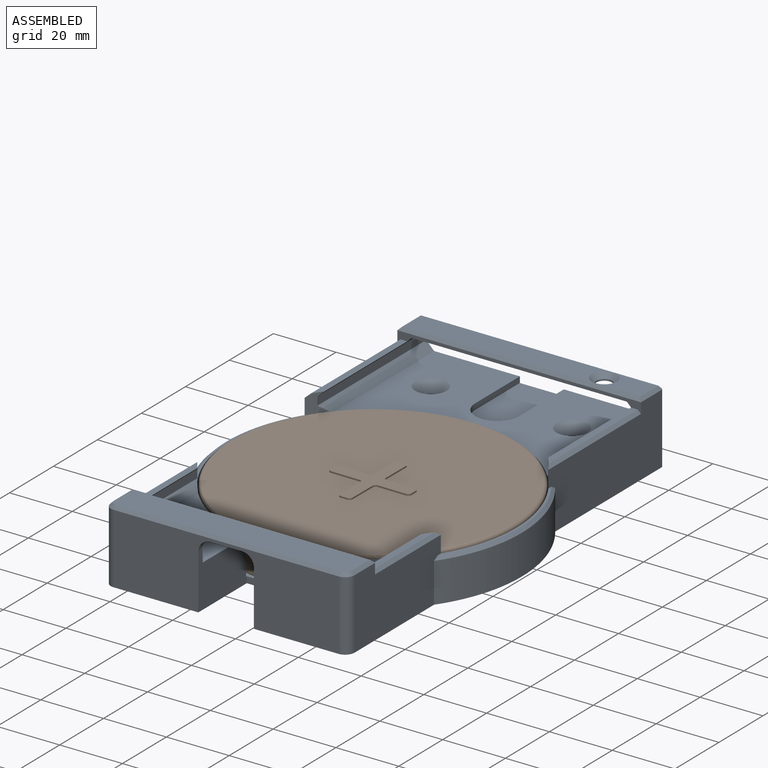
[diagram: assembled view]
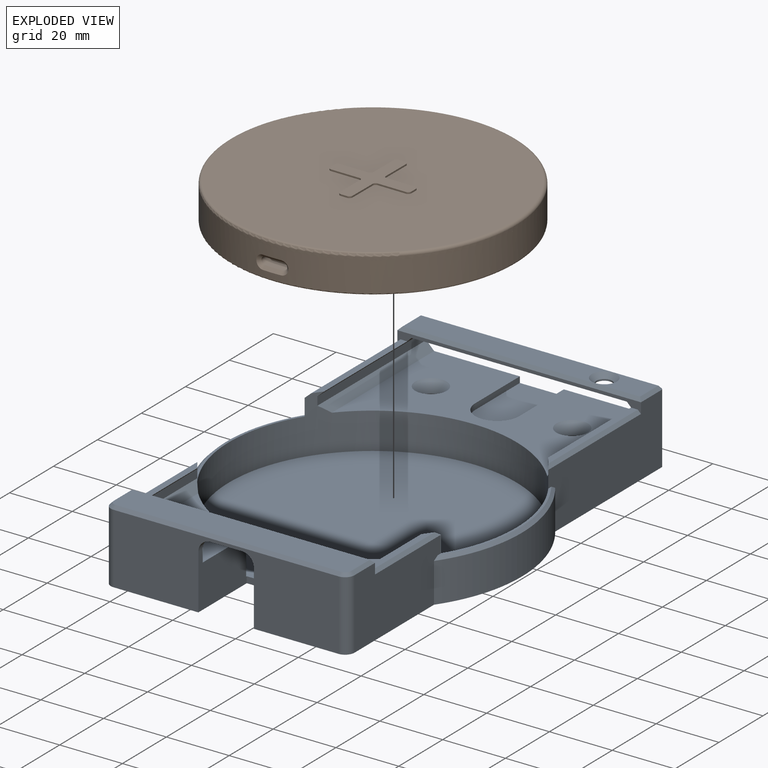
[diagram: exploded view]
GUIDED TOUR — FREECAD ASSEMBLY "NokiaSiroccoWallMount"

This assembly has 2 components, labeled P0..P1 below (a component is one placed body or linked part; the same part can appear more than once), held together by 1 modeled joint. A joint is a constraint between two components; its type names the relative motion it leaves free:
  REVOLUTE — leaves rotation about the listed axis free (a hinge).
Axis/direction vectors are unit vectors and 'through' points are millimeter coordinates, both in the assembly's world frame.

MATES
  1. REVOLUTE [Revolute] "Joint": P0 <-> P1, axis (0.000, 0.000, 1.000) through (0.00, -6.00, -11.60) mm

ASSEMBLY ORDER
  1. P0 — the base component [order verified]
  2. P1 [order verified]
Order-tag legend:
  [order verified] — this step's position reverses a verified removal order: the component was checked to insert without passing through the ones already placed.

Of the 2 components, 1 carries a construction recipe — the FreeCAD feature program (sketches with constraints, then the solid features that consume them) that regenerates the part from scratch, quoted from this document or from the linked companion document it references; the rest are supplied as boundary geometry only. The tour below walks the components in assembly order: each is shown spotlighted twice — in the assembled view, then in the exploded view, where a leader line traces a displaced component back to its assembled socket (components that stay in place when exploded have no leader line; saturated green if recipe-attached, orange if geometry-only; every other component desaturated gray) — followed by its recipe or geometry summary and the mates that hold it.
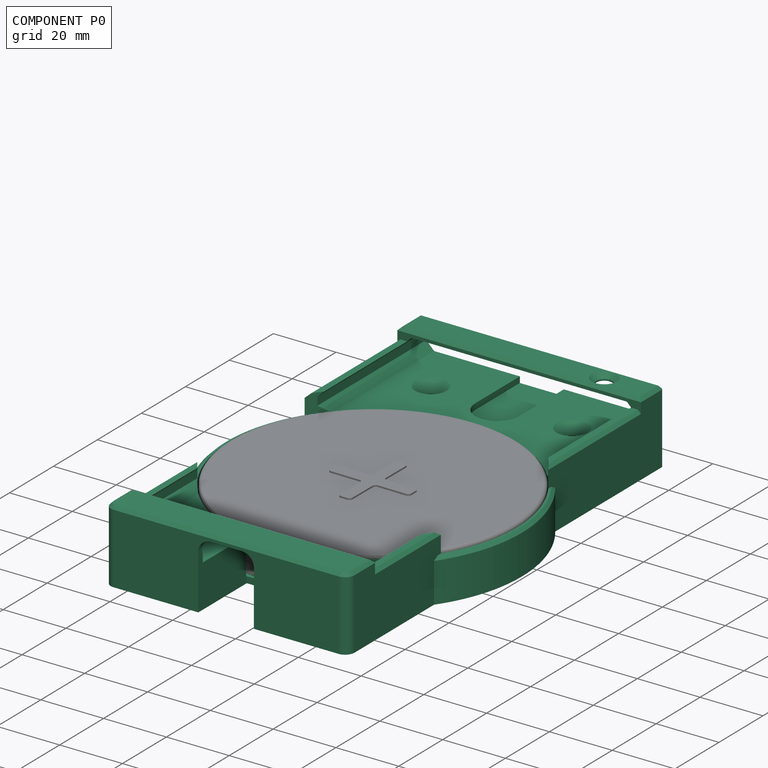
[diagram: component P0 — assembled]
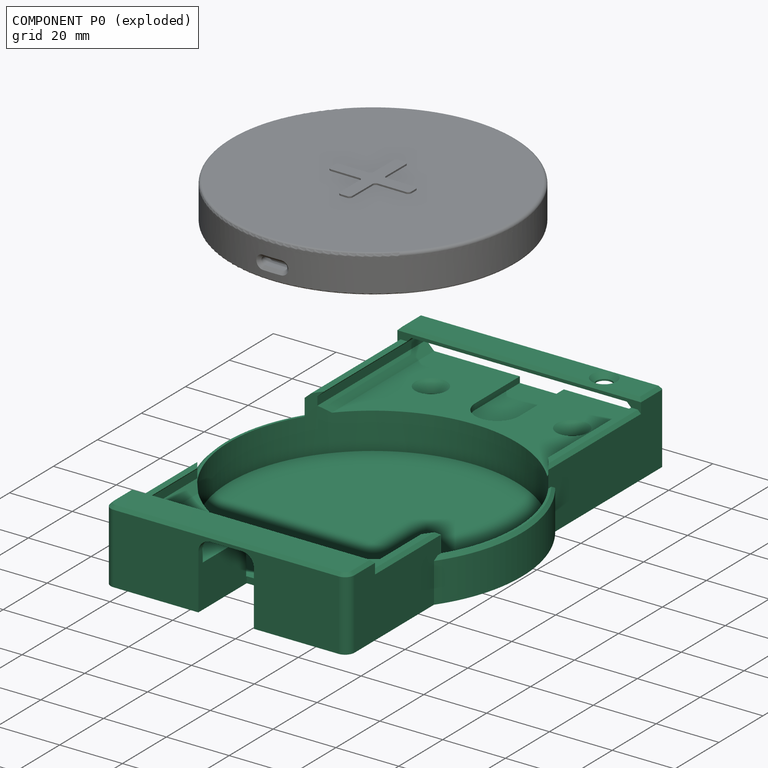
[diagram: component P0 — exploded]
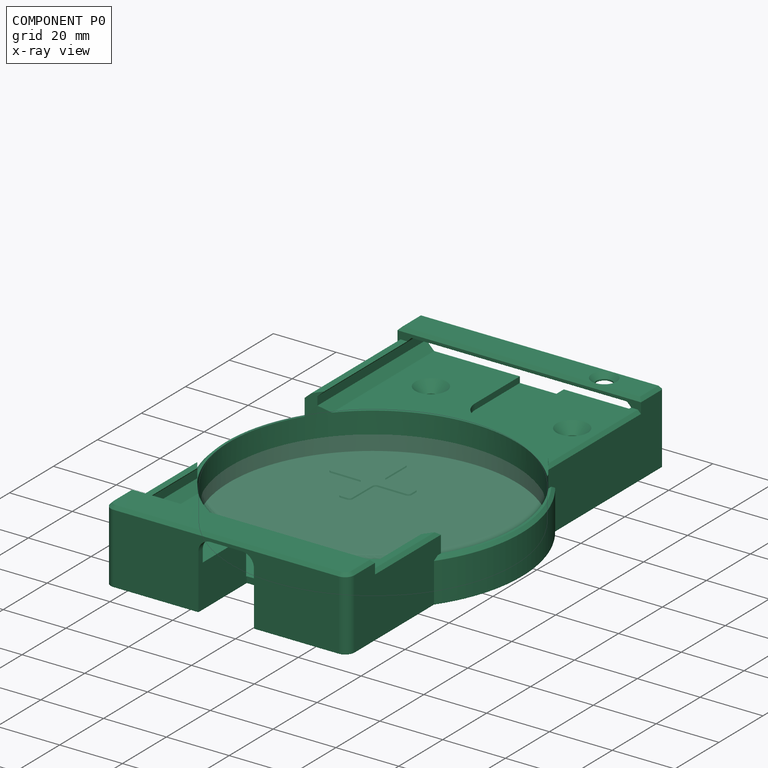
[diagram: component P0 — x-ray view]
COMPONENT P0 — recipe-attached ("Body001", modeled in this document).
Held by: REVOLUTE mate "Joint" to P1.
Construction recipe (the document's own serialized feature program — sketch geometry with constraints, then the solid features built on it; lengths are millimeters unless a unit is written):

FEATURE [Sketcher::SketchObject] Sketch
  ArcFitTolerance = 1e-06
  AttachmentSupport = -> [XZ_Plane]
  FullyConstrained = true
  MakeInternals = false
  MapMode = 5
  Placement = pos=(0,0,0) rot=(1,0,0;1.5708rad)
  expr: Constraints[10] = <<config>>.thickness
  expr: Constraints[11] = <<config>>.thickness
  expr: Constraints[12] = <<phone>>.thickness
  expr: Constraints[22] = <<config>>.thickness
  expr: Constraints[9] = <<phone>>.width / 2 + <<config>>.clearance
  sketch-geometry (8):
    g0: LineSegment StartX=0 StartY=0 StartZ=0 EndX=-36.8 EndY=0 EndZ=0
    g1: LineSegment StartX=-36.8 StartY=0 StartZ=0 EndX=-36.8 EndY=7.7 EndZ=0
    g2: LineSegment StartX=0 StartY=9.7 StartZ=0 EndX=-38.8 EndY=9.7 EndZ=0
    g3: LineSegment StartX=-38.8 StartY=9.7 StartZ=0 EndX=-38.8 EndY=-2 EndZ=0
    g4: LineSegment StartX=-38.8 StartY=-2 StartZ=0 EndX=0 EndY=-2 EndZ=0
    g5: LineSegment StartX=0 StartY=0 StartZ=0 EndX=0 EndY=-2 EndZ=0
    g6: LineSegment StartX=-36.8 StartY=7.7 StartZ=0 EndX=0 EndY=7.7 EndZ=0
    g7: LineSegment StartX=0 StartY=7.7 StartZ=0 EndX=0 EndY=9.7 EndZ=0
  constraints (23):
    c: Coincident(g-1,g0)
    c: PointOnObject(g0,g-1)
    c: Coincident(g0,g1)
    c: Vertical(g1)
    c: Horizontal(g2)
    c: Coincident(g2,g3)
    c: Vertical(g3)
    c: Coincident(g3,g4)
    c: Horizontal(g4)
    c: DistanceX(g0,g0) = 36.8
    c: DistanceY(g4,g0) = 2
    c: DistanceX(g3,g0) = 2
    c: DistanceY(g1,g1) = 7.7
    c: PointOnObject(g4,g-2)
    c: Coincident(g5,g0)
    c: Coincident(g5,g4)
    c: Coincident(g1,g6)
    c: PointOnObject(g6,g-2)
    c: Horizontal(g6)
    c: Coincident(g6,g7)
    c: PointOnObject(g7,g-2)
    c: Coincident(g2,g7)
    c: DistanceY(g6,g2) = 2
FEATURE [PartDesign::Pad] Pad
  Direction = (0,-1,2e-16)
  Length = 141.6
  Length2 = 10
  Midplane = true
  Placement = pos=(0,0,0) rot=(1,0,0;1.5708rad)
  Profile = -> Sketch
  ReferenceAxis = -> Sketch [N_Axis]
  Refine = true
  Suppressed = false
  Type = 0
  expr: Length = <<phone>>.height + 2 * <<config>>.clearance
FEATURE [PartDesign::Plane] DatumPlane
  AttachmentOffset = pos=(0,0,70.8) rot=(0,0,1;0rad)
  AttachmentSupport = -> [XZ_Plane]
  Length = 108.98
  MapMode = 5
  Placement = pos=(0,-70.8,1.57e-14) rot=(1,0,0;1.5708rad)
  ResizeMode = 0
  Width = 63.7973
  expr: .AttachmentOffset.Base.z = <<phone>>.height / 2 + <<config>>.clearance
FEATURE [PartDesign::Chamfer] Chamfer
  Angle = 45
  Base = -> Pad [Edge5,Edge2]
  BaseFeature = -> Pad
  ChamferType = 0
  FlipDirection = false
  Placement = pos=(0,0,0) rot=(1,0,0;1.5708rad)
  Refine = true
  Size = 2.5
  Size2 = 1
  SupportTransform = false
  Suppressed = false
  UseAllEdges = false
FEATURE [PartDesign::Mirrored] Mirrored
  BaseFeature = -> Chamfer
  MirrorPlane = -> YZ_Plane
  Originals = -> [Chamfer,Pad]
  Placement = pos=(0,0,0) rot=(1,0,0;1.5708rad)
  Refine = true
  Suppressed = false
  TransformMode = 0
FEATURE [Sketcher::SketchObject] Sketch001
  ArcFitTolerance = 1e-06
  AttachmentSupport = -> [DatumPlane]
  ExternalGeometry = -> [Mirrored]
  FullyConstrained = true
  MakeInternals = false
  MapMode = 5
  Placement = pos=(0,-70.8,1.57e-14) rot=(1,0,0;1.5708rad)
  sketch-geometry (4):
    g0: LineSegment StartX=-38.8 StartY=9.7 StartZ=0 EndX=-38.8 EndY=-2 EndZ=0
    g1: LineSegment StartX=-38.8 StartY=-2 StartZ=0 EndX=38.8 EndY=-2 EndZ=0
    g2: LineSegment StartX=38.8 StartY=-2 StartZ=0 EndX=38.8 EndY=9.7 EndZ=0
    g3: LineSegment StartX=38.8 StartY=9.7 StartZ=0 EndX=-38.8 EndY=9.7 EndZ=0
  constraints (10):
    c: Coincident(g0,g1)
    c: Coincident(g1,g2)
    c: Coincident(g2,g3)
    c: Coincident(g3,g0)
    c: Vertical(g0)
    c: Vertical(g2)
    c: Horizontal(g1)
    c: Horizontal(g3)
    c: Coincident(g0,g-3)
    c: Coincident(g1,g-4)
FEATURE [PartDesign::Pad] Pad001
  BaseFeature = -> Mirrored
  Direction = (0,-1,2e-16)
  Length = 2
  Length2 = 10
  Placement = pos=(0,0,0) rot=(1,0,0;1.5708rad)
  Profile = -> Sketch001
  ReferenceAxis = -> Sketch001 [N_Axis]
  Refine = true
  Suppressed = false
  Type = 0
  expr: Length = <<config>>.thickness
FEATURE [Sketcher::SketchObject] Sketch002
  ArcFitTolerance = 1e-06
  AttachmentSupport = -> [YZ_Plane]
  FullyConstrained = true
  MakeInternals = false
  MapMode = 5
  Placement = pos=(0,0,0) rot=(0.57735,0.57735,0.57735;2.0944rad)
  expr: Constraints[10] = <<phone>>.height - 2 * <<phone>>.frame
  expr: Constraints[11] = <<phone>>.thickness / 2 + 2.5 mm
  sketch-geometry (5):
    g0: LineSegment StartX=-60.5 StartY=16.35 StartZ=0 EndX=-60.5 EndY=6.35 EndZ=0
    g1: LineSegment StartX=-60.5 StartY=6.35 StartZ=0 EndX=60.5 EndY=6.35 EndZ=0
    g2: LineSegment StartX=60.5 StartY=6.35 StartZ=0 EndX=60.5 EndY=16.35 EndZ=0
    g3: LineSegment StartX=60.5 StartY=16.35 StartZ=0 EndX=-60.5 EndY=16.35 EndZ=0
    g4: GeomPoint [constr] X=0 Y=11.35 Z=0
  constraints (13):
    c: Coincident(g0,g1)
    c: Coincident(g1,g2)
    c: Coincident(g2,g3)
    c: Coincident(g3,g0)
    c: Vertical(g0)
    c: Vertical(g2)
    c: Horizontal(g1)
    c: Horizontal(g3)
    c: Symmetric(g2,g0,g4)
    c: PointOnObject(g4,g-2)
    c: DistanceX(g3,g3) = 121
    c: DistanceY(g-1,g1) = 6.35
    c: DistanceY(g2,g2) = 10
FEATURE [PartDesign::Pocket] Pocket
  BaseFeature = -> Pad001
  Direction = (-1,0,0)
  Length = 5
  Length2 = 5
  Midplane = true
  Placement = pos=(0,0,0) rot=(1,0,0;1.5708rad)
  Profile = -> Sketch002
  ReferenceAxis = -> Sketch002 [N_Axis]
  Refine = true
  Suppressed = false
  Type = 1
FEATURE [Sketcher::SketchObject] Sketch003
  ArcFitTolerance = 1e-06
  AttachmentSupport = -> [XY_Plane]
  FullyConstrained = true
  MakeInternals = false
  MapMode = 5
  expr: Constraints[13] = <<phone>>.height / 2 + 10 mm
  expr: Constraints[22] = <<phone>>.height / 2 - 27 mm
  sketch-geometry (9):
    g0: LineSegment StartX=-7 StartY=80.5 StartZ=0 EndX=-7 EndY=50.5 EndZ=0
    g1: LineSegment [constr] StartX=-7 StartY=50.5 StartZ=0 EndX=7 EndY=50.5 EndZ=0
    g2: LineSegment StartX=7 StartY=50.5 StartZ=0 EndX=7 EndY=80.5 EndZ=0
    g3: LineSegment StartX=7 StartY=80.5 StartZ=0 EndX=-7 EndY=80.5 EndZ=0
    g4: GeomPoint [constr] X=0 Y=65.5 Z=0
    g5: ArcOfCircle CenterX=-1e-15 CenterY=50.5 CenterZ=0 NormalX=0 NormalY=0 NormalZ=1 AngleXU=0 Radius=7 StartAngle=3.14159 EndAngle=6.28319
    g6: LineSegment [constr] StartX=-7 StartY=50.5 StartZ=0 EndX=-7 EndY=43.5 EndZ=0
    g7: LineSegment [constr] StartX=-7 StartY=43.5 StartZ=0 EndX=7 EndY=43.5 EndZ=0
    g8: LineSegment [constr] StartX=7 StartY=43.5 StartZ=0 EndX=7 EndY=50.5 EndZ=0
  constraints (24):
    c: Coincident(g0,g1)
    c: Coincident(g1,g2)
    c: Coincident(g2,g3)
    c: Coincident(g3,g0)
    c: Vertical(g0)
    c: Vertical(g2)
    c: Horizontal(g1)
    c: Horizontal(g3)
    c: Symmetric(g2,g0,g4)
    c: PointOnObject(g4,g-2)
    c: Coincident(g5,g0)
    c: Coincident(g5,g1)
    c: PointOnObject(g5,g1)
    c: DistanceY(g-1,g2) = 80.5
    c: Coincident(g0,g6)
    c: Vertical(g6)
    c: Coincident(g6,g7)
    c: Horizontal(g7)
    c: Tangent(g7,g5)
    c: Coincident(g7,g8)
    c: Coincident(g8,g1)
    c: Vertical(g8)
    c: DistanceY(g-1,g6) = 43.5
    c: DistanceX(g3,g3) = 14
FEATURE [PartDesign::Pocket] Pocket001
  BaseFeature = -> Pocket
  Direction = (0,0,-1)
  Length = 1.9
  Length2 = 5
  Placement = pos=(0,0,0) rot=(1,0,0;1.5708rad)
  Profile = -> Sketch003
  ReferenceAxis = -> Sketch003 [N_Axis]
  Refine = true
  Suppressed = false
  Type = 0
  expr: Length = <<phone>>.thickness_camera - <<phone>>.thickness + <<config>>.clearance
FEATURE [Sketcher::SketchObject] Sketch004
  ArcFitTolerance = 1e-06
  AttachmentSupport = -> [DatumPlane]
  FullyConstrained = true
  MakeInternals = false
  MapMode = 5
  Placement = pos=(0,-70.8,1.57e-14) rot=(1,0,0;1.5708rad)
  expr: Constraints[6] = <<phone>>.thickness / 2
  expr: Constraints[7] = <<phone>>.thickness
  sketch-geometry (4):
    g0: ArcOfCircle CenterX=-5 CenterY=3.85 CenterZ=0 NormalX=0 NormalY=0 NormalZ=1 AngleXU=0 Radius=3.85 StartAngle=1.5708 EndAngle=4.71239
    g1: ArcOfCircle CenterX=5 CenterY=3.85 CenterZ=0 NormalX=0 NormalY=0 NormalZ=1 AngleXU=0 Radius=3.85 StartAngle=4.71239 EndAngle=7.85398
    g2: LineSegment StartX=-5 StartY=7.7 StartZ=0 EndX=5 EndY=7.7 EndZ=0
    g3: LineSegment StartX=-5 StartY=0 StartZ=0 EndX=5 EndY=0 EndZ=0
  constraints (9):
    c: Tangent(g0,g2) = 1.5708
    c: Tangent(g0,g3) = -1.5708
    c: Tangent(g1,g2) = 1.5708
    c: Tangent(g1,g3) = -1.5708
    c: Equal(g0,g1)
    c: Symmetric(g0,g1,g-2)
    c: DistanceY(g-1,g0) = 3.85
    c: DistanceY(g0,g0) = 7.7
    c: DistanceX(g3,g3) = 10
FEATURE [PartDesign::Pocket] Pocket002
  BaseFeature = -> Pocket001
  Direction = (0,1,-2e-16)
  Length = 5
  Length2 = 5
  Placement = pos=(0,0,0) rot=(1,0,0;1.5708rad)
  Profile = -> Sketch004
  ReferenceAxis = -> Sketch004 [N_Axis]
  Refine = true
  Reversed = true
  Suppressed = false
  Type = 0
FEATURE [Sketcher::SketchObject] Sketch005
  ArcFitTolerance = 1e-06
  AttachmentSupport = -> [XY_Plane]
  ExternalGeometry = -> [Pocket002]
  FullyConstrained = true
  MakeInternals = false
  MapMode = 5
  expr: Constraints[0] = <<charger>>.diameter + <<charger>>.wall_thickness * 2
  sketch-geometry (2):
    g0: Circle CenterX=0 CenterY=-6.1 CenterZ=0 NormalX=0 NormalY=0 NormalZ=1 AngleXU=0 Radius=47.6
    g1: LineSegment [constr] StartX=0 StartY=43.5 StartZ=0 EndX=0 EndY=41.5 EndZ=0
  constraints (7):
    c: Diameter(g0) = 95.2
    c: PointOnObject(g0,g-2)
    c: PointOnObject(g1,g-3)
    c: PointOnObject(g1,g-2)
    c: PointOnObject(g1,g-2)
    c: PointOnObject(g1,g0)
    c: DistanceY(g1,g1) = 2
FEATURE [PartDesign::Pad] Pad002
  BaseFeature = -> Pocket002
  Direction = (0,0,1)
  Length = 13.6
  Length2 = 10
  Placement = pos=(0,0,0) rot=(1,0,0;1.5708rad)
  Profile = -> Sketch005
  ReferenceAxis = -> Sketch005 [N_Axis]
  Refine = true
  Reversed = true
  Suppressed = false
  Type = 0
  expr: Length = <<charger>>.height + <<config>>.thickness
FEATURE [Sketcher::SketchObject] Sketch006
  ArcFitTolerance = 1e-06
  AttachmentSupport = -> [Pad002]
  ExternalGeometry = -> [Pad002]
  FullyConstrained = true
  MakeInternals = false
  MapMode = 5
  Placement = pos=(0,-9e-16,-2) rot=(1,0,0;3.14159rad)
  sketch-geometry (4):
    g0: LineSegment StartX=-38.8 StartY=72.8 StartZ=0 EndX=-38.8 EndY=-70.8 EndZ=0
    g1: LineSegment StartX=-38.8 StartY=-70.8 StartZ=0 EndX=38.8 EndY=-70.8 EndZ=0
    g2: LineSegment StartX=38.8 StartY=-70.8 StartZ=0 EndX=38.8 EndY=72.8 EndZ=0
    g3: LineSegment StartX=38.8 StartY=72.8 StartZ=0 EndX=-38.8 EndY=72.8 EndZ=0
  constraints (10):
    c: Coincident(g0,g1)
    c: Coincident(g1,g2)
    c: Coincident(g2,g3)
    c: Coincident(g3,g0)
    c: Vertical(g0)
    c: Vertical(g2)
    c: Horizontal(g1)
    c: Horizontal(g3)
    c: Coincident(g0,g-3)
    c: Coincident(g1,g-4)
FEATURE [PartDesign::Pad] Pad003
  BaseFeature = -> Pad002
  Direction = (0,0,-1)
  Length = 10
  Length2 = 10
  Placement = pos=(0,0,0) rot=(1,0,0;1.5708rad)
  Profile = -> Sketch006
  ReferenceAxis = -> Sketch006 [N_Axis]
  Refine = true
  Suppressed = false
  Type = 3
  UpToFace = -> Pad002 [Face32]
FEATURE [Sketcher::SketchObject] Sketch007
  ArcFitTolerance = 1e-06
  AttachmentSupport = -> [XY_Plane]
  ExternalGeometry = -> [Pad003]
  FullyConstrained = true
  MakeInternals = false
  MapMode = 5
  expr: Constraints[1] = <<charger>>.diameter + 2 * 0.25 mm
  sketch-geometry (1):
    g0: Circle CenterX=0 CenterY=-6.1 CenterZ=0 NormalX=0 NormalY=0 NormalZ=1 AngleXU=0 Radius=45.85
  constraints (2):
    c: Coincident(g0,g-3)
    c: Diameter(g0) = 91.7
FEATURE [PartDesign::Pocket] Pocket003
  BaseFeature = -> Pad003
  Direction = (0,0,-1)
  Length = 11.6
  Length2 = 20
  Placement = pos=(0,0,0) rot=(1,0,0;1.5708rad)
  Profile = -> Sketch007
  ReferenceAxis = -> Sketch007 [N_Axis]
  Refine = true
  Suppressed = false
  Type = 4
  expr: Length = <<charger>>.height
FEATURE [Sketcher::SketchObject] Sketch008
  ArcFitTolerance = 1e-06
  AttachmentSupport = -> [Pocket003]
  FullyConstrained = true
  MakeInternals = false
  MapMode = 5
  Placement = pos=(0,-72.8,2.24e-14) rot=(1,0,0;1.5708rad)
  expr: Constraints[9] = <<charger>>.height * 2
  sketch-geometry (9):
    g0: LineSegment StartX=-8.85 StartY=-23.2 StartZ=0 EndX=8.85 EndY=-23.2 EndZ=0
    g1: LineSegment StartX=8.85 StartY=-23.2 StartZ=0 EndX=8.85 EndY=3.85 EndZ=0
    g2: LineSegment StartX=5 StartY=7.7 StartZ=0 EndX=-5 EndY=7.7 EndZ=0
    g3: LineSegment StartX=-8.85 StartY=3.85 StartZ=0 EndX=-8.85 EndY=-23.2 EndZ=0
    g4: GeomPoint [constr] X=0 Y=-7.75 Z=0
    g5: ArcOfCircle CenterX=-5 CenterY=3.85 CenterZ=0 NormalX=0 NormalY=0 NormalZ=1 AngleXU=0 Radius=3.85 StartAngle=1.5708 EndAngle=3.14159
    g6: GeomPoint [constr] X=-8.85 Y=7.7 Z=0
    g7: ArcOfCircle CenterX=5 CenterY=3.85 CenterZ=0 NormalX=0 NormalY=0 NormalZ=1 AngleXU=0 Radius=3.85 StartAngle=0 EndAngle=1.5708
    g8: GeomPoint [constr] X=8.85 Y=7.7 Z=0
  constraints (21):
    c: Coincident(g0,g1)
    c: Coincident(g3,g0)
    c: Horizontal(g0)
    c: Horizontal(g2)
    c: Vertical(g1)
    c: Vertical(g3)
    c: Symmetric(g8,g0,g4)
    c: PointOnObject(g4,g-2)
    c: DistanceY(g-1,g8) = 7.7
    c: DistanceY(g0,g-1) = 23.2
    c: PointOnObject(g6,g2)
    c: PointOnObject(g6,g3)
    c: Tangent(g2,g5) = -1.5708
    c: Tangent(g3,g5) = -1.5708
    c: PointOnObject(g8,g2)
    c: PointOnObject(g8,g1)
    c: Tangent(g2,g7) = -1.5708
    c: Tangent(g1,g7) = -1.5708
    c: DistanceX(g2,g2) = 10
    c: Diameter(g5) = 7.7
    c: Equal(g5,g7)
FEATURE [PartDesign::Pocket] Pocket004
  BaseFeature = -> Pocket003
  Direction = (0,1,-2e-16)
  Length = 22
  Length2 = 5
  Placement = pos=(0,0,0) rot=(1,0,0;1.5708rad)
  Profile = -> Sketch008
  ReferenceAxis = -> Sketch008 [N_Axis]
  Refine = true
  Suppressed = false
  Type = 0
FEATURE [Sketcher::SketchObject] Sketch009
  ArcFitTolerance = 1e-06
  AttachmentSupport = -> [Pocket004]
  FullyConstrained = true
  MakeInternals = false
  MapMode = 5
  Placement = pos=(0,0,4.6e-15) rot=(0,0,1;3.14159rad)
  sketch-geometry (9):
    g0: LineSegment [constr] StartX=-22.5 StartY=52.5 StartZ=0 EndX=-22.5 EndY=-52.5 EndZ=0
    g1: LineSegment [constr] StartX=-22.5 StartY=-52.5 StartZ=0 EndX=22.5 EndY=-52.5 EndZ=0
    g2: LineSegment [constr] StartX=22.5 StartY=-52.5 StartZ=0 EndX=22.5 EndY=52.5 EndZ=0
    g3: LineSegment [constr] StartX=22.5 StartY=52.5 StartZ=0 EndX=-22.5 EndY=52.5 EndZ=0
    g4: GeomPoint [constr] X=0 Y=-3.6e-15 Z=0
    g5: Circle CenterX=-22.5 CenterY=52.5 CenterZ=0 NormalX=0 NormalY=0 NormalZ=1 AngleXU=0 Radius=2
    g6: Circle CenterX=22.5 CenterY=52.5 CenterZ=0 NormalX=0 NormalY=0 NormalZ=1 AngleXU=0 Radius=2
    g7: Circle CenterX=22.5 CenterY=-52.5 CenterZ=0 NormalX=0 NormalY=0 NormalZ=1 AngleXU=0 Radius=2
    g8: Circle CenterX=-22.5 CenterY=-52.5 CenterZ=0 NormalX=0 NormalY=0 NormalZ=1 AngleXU=0 Radius=2
  constraints (20):
    c: Coincident(g0,g1)
    c: Coincident(g1,g2)
    c: Coincident(g2,g3)
    c: Coincident(g3,g0)
    c: Vertical(g2)
    c: Horizontal(g1)
    c: Horizontal(g3)
    c: Symmetric(g2,g0,g4)
    c: PointOnObject(g4,g-2)
    c: Coincident(g5,g0)
    c: Coincident(g6,g2)
    c: Coincident(g7,g1)
    c: Coincident(g8,g0)
    c: Equal(g6,g5)
    c: Equal(g5,g8)
    c: Equal(g5,g7)
    c: Diameter(g5) = 4
    c: DistanceY(g2,g2) = 105
    c: DistanceX(g1,g1) = 45
    c: Symmetric(g0,g0,g-1)
FEATURE [PartDesign::Hole] Hole
  BaseFeature = -> Pocket004
  CustomThreadClearance = 0
  Depth = 351.176
  DepthType = 1
  Diameter = 4
  DrillForDepth = false
  DrillPoint = 1
  DrillPointAngle = 118
  HoleCutCountersinkAngle = 90
  HoleCutCustomValues = false
  HoleCutDepth = 0
  HoleCutDiameter = 10
  HoleCutType = 2
  ModelThread = false
  Placement = pos=(0,0,0) rot=(1,0,0;1.5708rad)
  Profile = -> Sketch009
  Refine = true
  Suppressed = false
  Tapered = false
  TaperedAngle = 90
  ThreadClass = 0
  ThreadDepth = 351.176
  ThreadDepthType = 0
  ThreadDirection = 0
  ThreadFit = 0
  ThreadSize = 0
  ThreadType = 0
  Threaded = false
  UseCustomThreadClearance = false
FEATURE [Sketcher::SketchObject] Sketch010
  ArcFitTolerance = 1e-06
  AttachmentSupport = -> [Hole]
  ExternalGeometry = -> [Hole]
  FullyConstrained = true
  MakeInternals = false
  MapMode = 5
  Placement = pos=(0,4.3e-15,9.7) rot=(0,0,1;3.14159rad)
  expr: Constraints[0] = <<phone>>.width / 2 - 13 mm
  sketch-geometry (3):
    g0: Circle CenterX=-23.5 CenterY=-65.65 CenterZ=0 NormalX=0 NormalY=0 NormalZ=1 AngleXU=0 Radius=2.5
    g1: LineSegment [constr] StartX=-23.5 StartY=-65.65 StartZ=0 EndX=-23.5 EndY=-60.5 EndZ=0
    g2: LineSegment [constr] StartX=-23.5 StartY=-65.65 StartZ=0 EndX=-23.5 EndY=-70.8 EndZ=0
  constraints (9):
    c: DistanceX(g0,g-1) = 23.5
    c: Coincident(g1,g0)
    c: PointOnObject(g1,g-4)
    c: Vertical(g1)
    c: Coincident(g2,g0)
    c: PointOnObject(g2,g-3)
    c: Vertical(g2)
    c: Equal(g2,g1)
    c: Diameter(g0) = 5
FEATURE [PartDesign::Hole] Hole001
  BaseFeature = -> Hole
  CustomThreadClearance = 0
  Depth = 3
  DepthType = 0
  Diameter = 5
  DrillForDepth = false
  DrillPoint = 1
  DrillPointAngle = 118
  HoleCutCountersinkAngle = 90
  HoleCutCustomValues = false
  HoleCutDepth = 0
  HoleCutDiameter = 8
  HoleCutType = 2
  ModelThread = false
  Placement = pos=(0,0,0) rot=(1,0,0;1.5708rad)
  Profile = -> Sketch010
  Refine = true
  Suppressed = false
  Tapered = false
  TaperedAngle = 90
  ThreadClass = 0
  ThreadDepth = 3
  ThreadDepthType = 0
  ThreadDirection = 0
  ThreadFit = 0
  ThreadSize = 0
  ThreadType = 0
  Threaded = false
  UseCustomThreadClearance = false
FEATURE [PartDesign::Fillet] Fillet
  Base = -> Hole001 [Edge121,Edge111]
  BaseFeature = -> Hole001
  Placement = pos=(0,0,0) rot=(1,0,0;1.5708rad)
  Radius = 3
  Refine = true
  SupportTransform = false
  Suppressed = false
  UseAllEdges = false
FEATURE [PartDesign::Fillet] Fillet001
  Base = -> Fillet [Edge54,Edge45]
  BaseFeature = -> Fillet
  Placement = pos=(0,0,0) rot=(1,0,0;1.5708rad)
  Radius = 1
  Refine = true
  SupportTransform = false
  Suppressed = false
  UseAllEdges = false
FEATURE [PartDesign::Chamfer] Chamfer001
  Angle = 45
  Base = -> Fillet001 [Edge51,Edge73,Edge153]
  BaseFeature = -> Fillet001
  ChamferType = 0
  FlipDirection = false
  Placement = pos=(0,0,0) rot=(1,0,0;1.5708rad)
  Refine = true
  Size = 1
  Size2 = 1
  SupportTransform = false
  Suppressed = false
  UseAllEdges = false
FEATURE [PartDesign::Chamfer] Chamfer002
  Angle = 45
  Base = -> Chamfer001 [Edge90,Edge111,Edge188]
  BaseFeature = -> Chamfer001
  ChamferType = 0
  FlipDirection = false
  Placement = pos=(0,0,0) rot=(1,0,0;1.5708rad)
  Refine = true
  Size = 0.99
  Size2 = 1
  SupportTransform = false
  Suppressed = false
  UseAllEdges = false
FEATURE [PartDesign::Chamfer] Chamfer003
  Angle = 45
  Base = -> Chamfer002 [Edge102,Edge41,Edge43,Edge6,Edge121,Edge109,Edge105]
  BaseFeature = -> Chamfer002
  ChamferType = 0
  FlipDirection = false
  Placement = pos=(0,0,0) rot=(1,0,0;1.5708rad)
  Refine = true
  Size = 1
  Size2 = 1
  SupportTransform = false
  Suppressed = false
  UseAllEdges = false
FEATURE [PartDesign::Body] Body
  AllowCompound = false
  Group = -> [Sketch,Pad,DatumPlane,Chamfer,Mirrored,Sketch001,Pad001,Sketch002,Pocket,Sketch003,Pocket001,Sketch004,Pocket002,Sketch005,Pad002,Sketch006,Pad003,Sketch007,Pocket003,Sketch008,Pocket004,Sketch009,Hole,Sketch010,Hole001,Fillet,Fillet001,Chamfer001,Chamfer002,Chamfer003]
  Origin = -> Origin
  Tip = -> Chamfer003
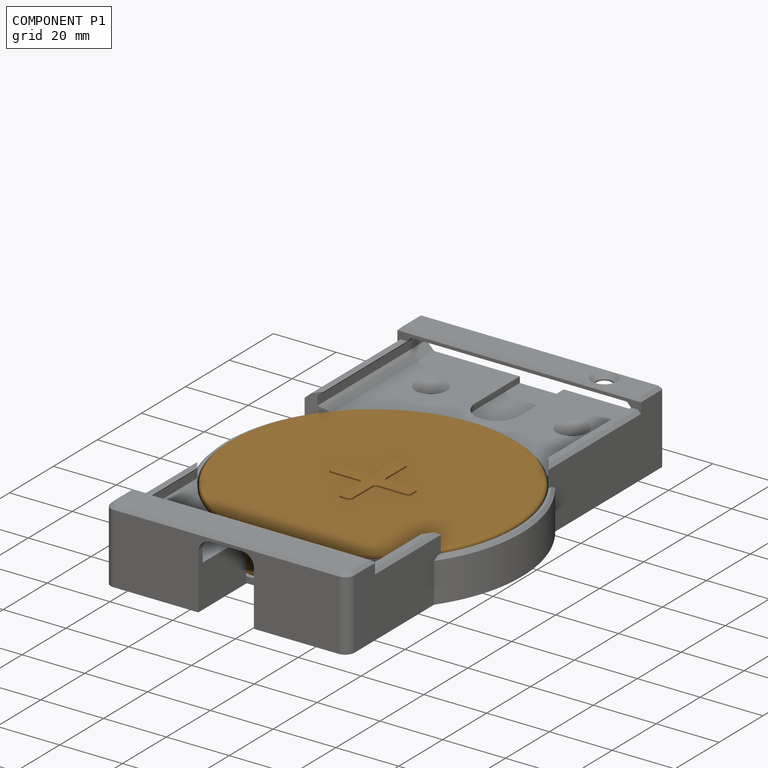
[diagram: component P1 — assembled]
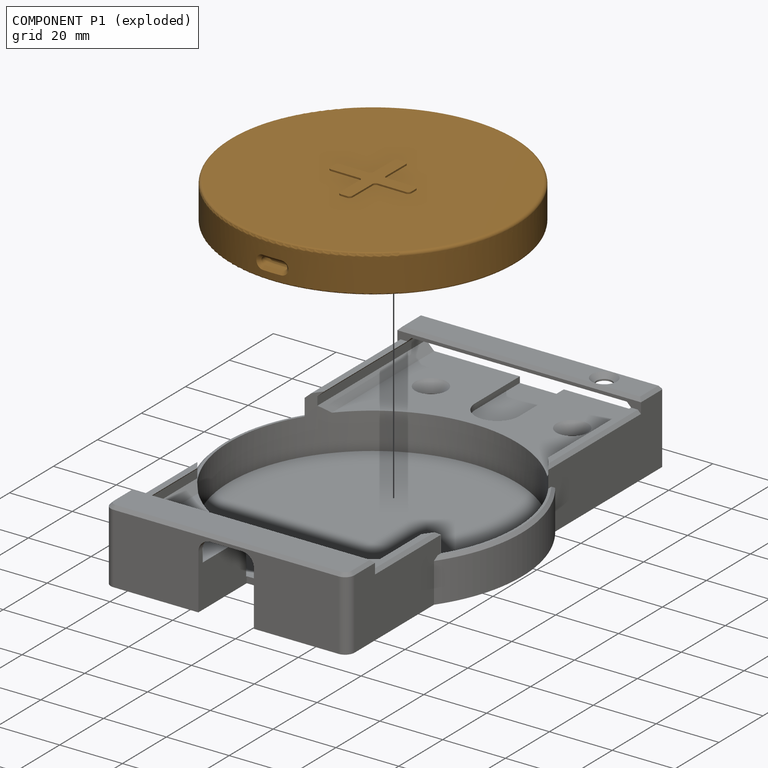
[diagram: component P1 — exploded]
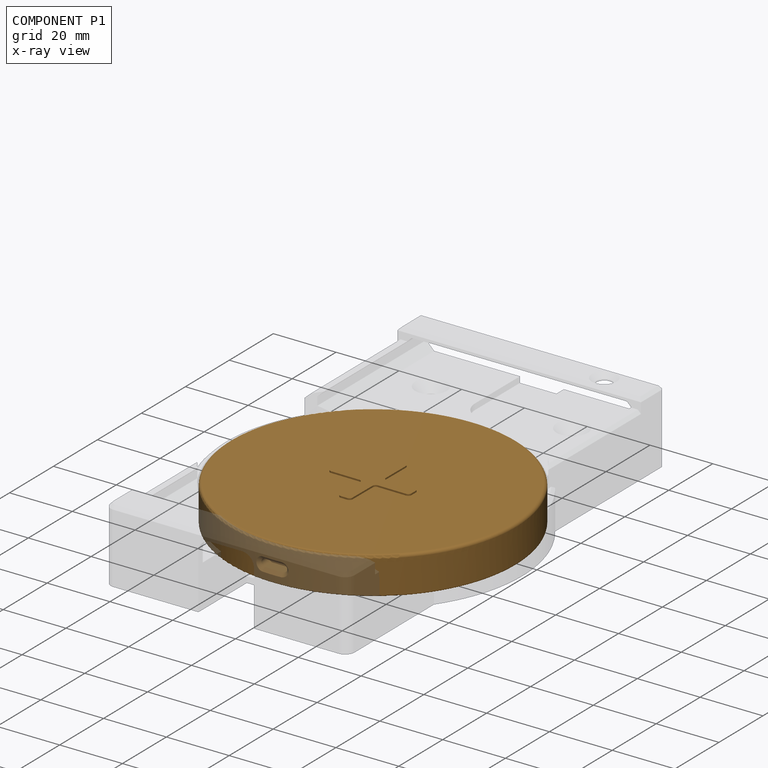
[diagram: component P1 — x-ray view]
COMPONENT P1 — geometry summary ("IKEA NORDM\X\C4RKE v007"; no construction recipe available for this part):
  bounding box: 91.0 x 91.0 x 12.9 mm
  tessellated surface: 19,486 triangles
  volume: 78369 mm^3 (73% of its bounding box)
  symmetry: revolution-symmetric about the z axis through its bounding-box center
Held by: REVOLUTE mate "Joint" to P0.
PROVENANCE & LICENSES
Assembly and component geometry: a FreeCAD (.FCStd) document from a public repository crawl; components, placements and joints were extracted with FreeCAD and each solid tessellated.
Construction recipes: the document's own serialized feature recipes (and, for linked parts, the recipes of companion documents from the same project).
License: as declared in the source repository (recorded in the dataset sidecar).
Joints: native FreeCAD joints and A2plus constraints are mapped to standard mate types.
Verification: 1 of this assembly's 2 components carries a construction recipe (1 from this document itself); the rest are geometry-only. Every component's tessellation passed the extraction mesh gates (mesh-volume checksum against the B-rep where available, bounding-box inflation <= 2%).
Renders: orthographic iso camera (az 35 / el 25); the floor grid conveys scale (grid pitch printed in each image; no ruler). In the exploded view each component is displaced by its stored offset vector: the offsets alone carry the explosion direction (mate normal/axis signs are not orientation cues and do not encode it), and separation distances are assigned per mate-chain, not proportionally to assembly-order depth.
